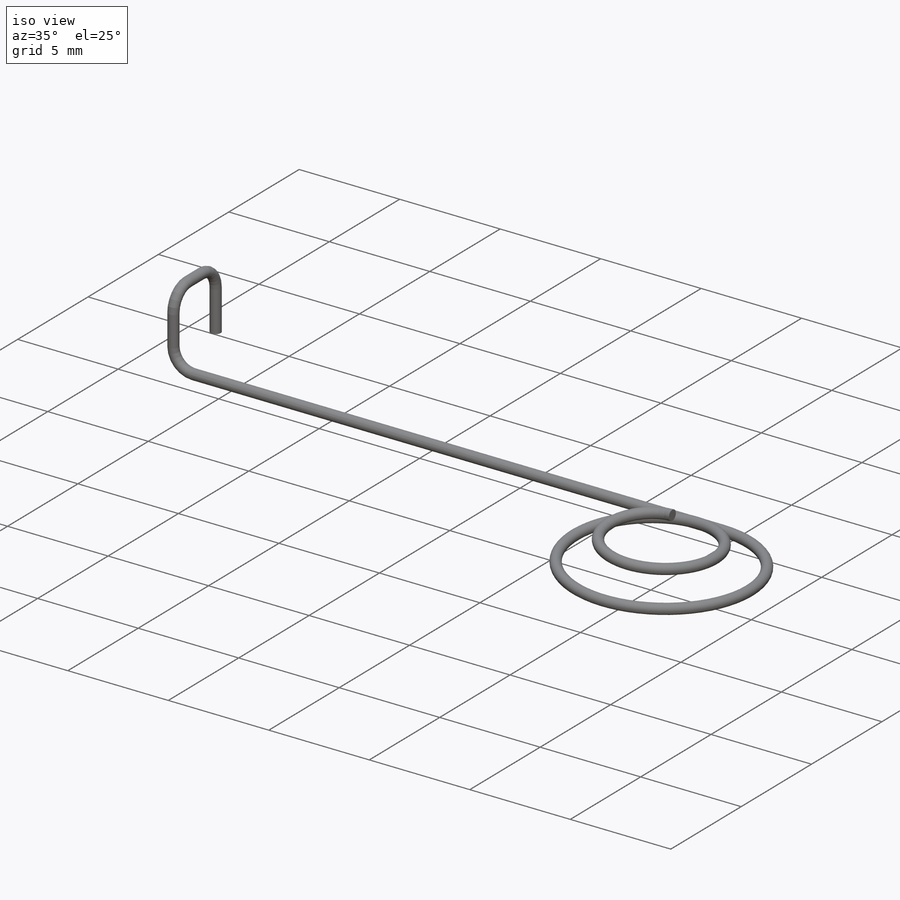
[diagram: iso view]
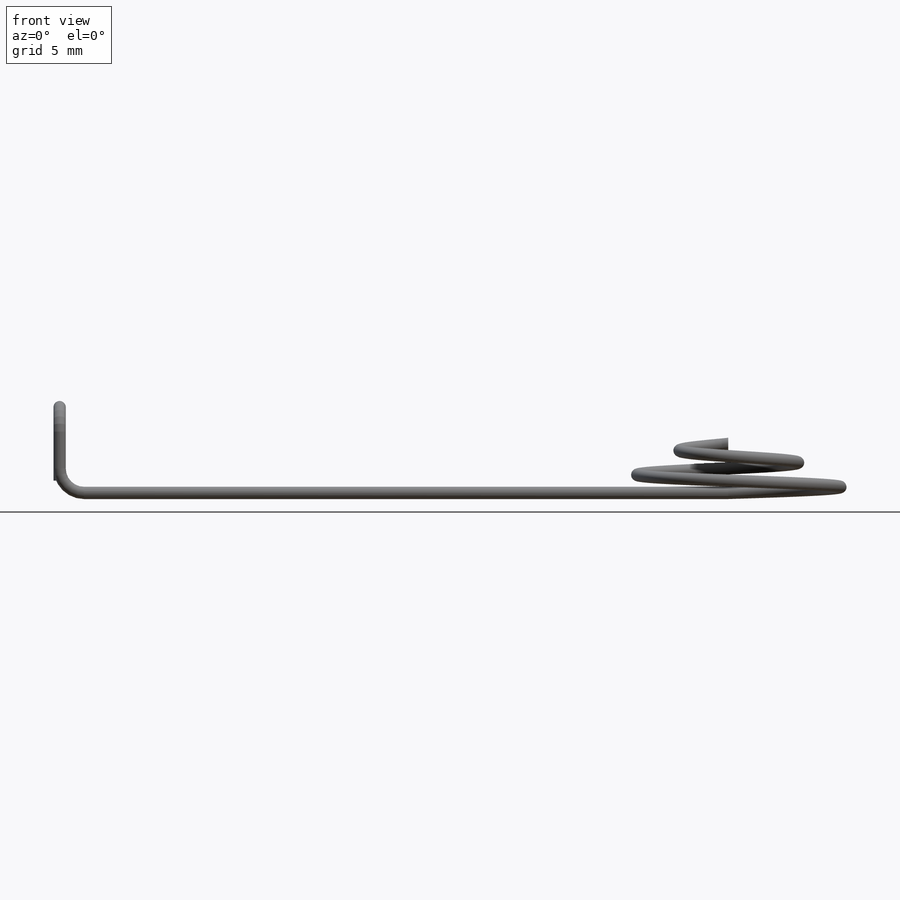
[diagram: front view]
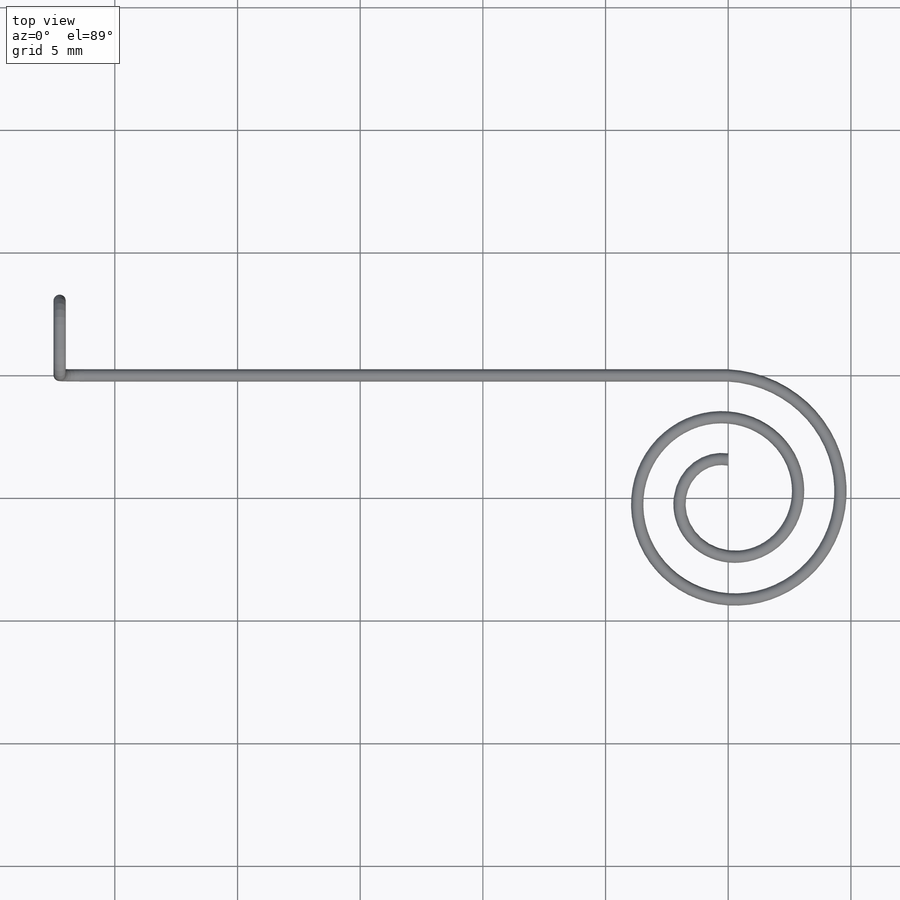
[diagram: top view]
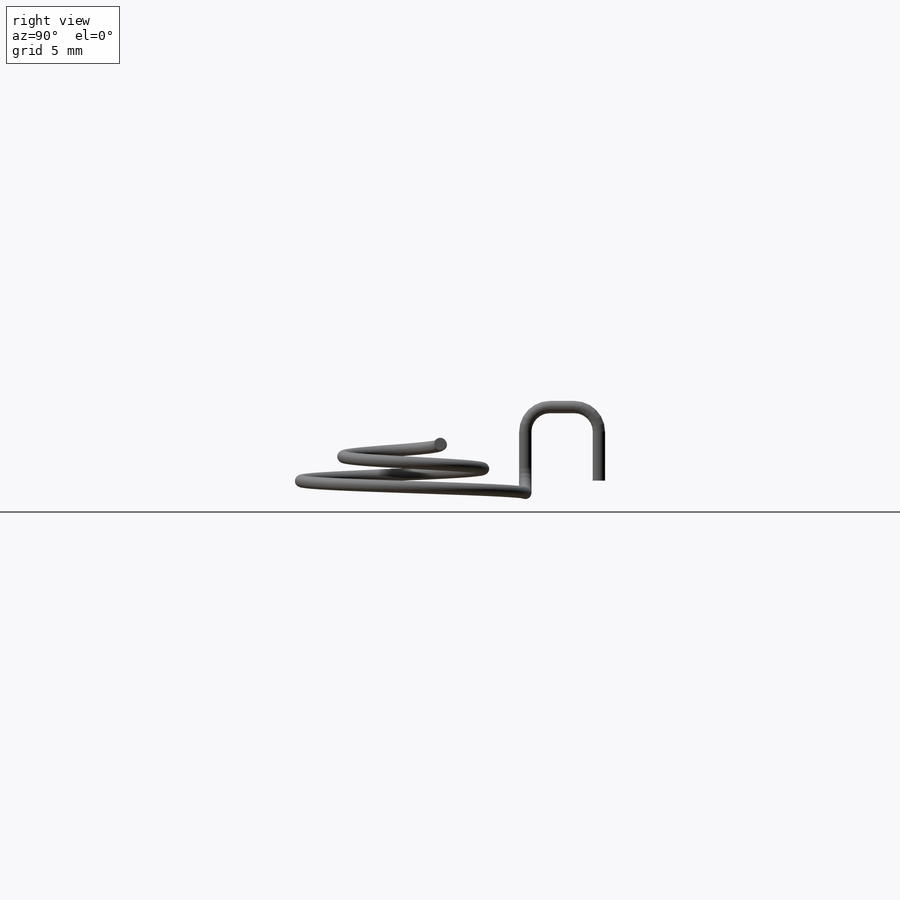
[diagram: right view]
SOLIDWORKS PART (.sldprt)
format: sldprt  version: not decoded by parser v0  size: 322,560 bytes
history: native  units: mm
features: sketch x4, sweep x2, material x1, helix x1 (+12 scaffold rows collapsed)
feature tree (20):
  scaffold x12  (default folders/planes/origin — collapsed)
  material  "Material <not specified>"
  sketch  "Sketch1"  dims[D1=10.0mm]
  helix  "Helix/Spiral1"  Pitch=2mm
  sketch  "Sketch3"  dims[D1=0.5mm]
  sweep  "Sweep1"
  sketch  "3DSketch1"  dims[c1.D2=~1.114278mm c1.D6=1.5mm c1.D3=~0.462672mm c1.D8=1.5mm c2.D6=~1.080603mm c2.D8=1.5mm c2.D3=~0.818152mm c2.D2=1.5mm c3.D6=~1.099586mm c3.D5=1.5mm c4.D6=1.5mm c4.D9=1.5mm c4.D1=1.0mm c4.D5=1.0mm c5.D6=1.0mm c5.D1=~12.380786mm c5.D2=12.0mm c5.D4=~0.898546mm c6.D2=2.0mm c6.D5=~2.24862mm c6.D8=1.0mm c6.D7=~2.615256mm c7.D2=2.5mm c7.D5=~1.159929mm c7.D9=2.0mm c7.D8=3.5mm c8.D9=3.5mm c8.D8=~4.949747mm c9.D9=~4.949747mm c9.D8=5.0mm c10.D9=5.0mm c10.D6=5.0mm c10.D3=5.0mm c10.D8=~1.42781mm c10.D2=2.0mm c10.D5=5.0mm c11.D2=5.0mm c11.D6=~2.12132mm c12.D2=1.5mm c12.D3=2.0mm c12.D4=1.0mm c12.D7=26.25mm]
  sketch  "Sketch4"  dims[D1=0.5mm]
  sweep  "Sweep2"
decode coverage: 5 of 7 modeling features carry decoded parameters
note: ~ marks probable driven/reference dimensions
note: suppression state not decoded; provenance and decode notes live in map.json
